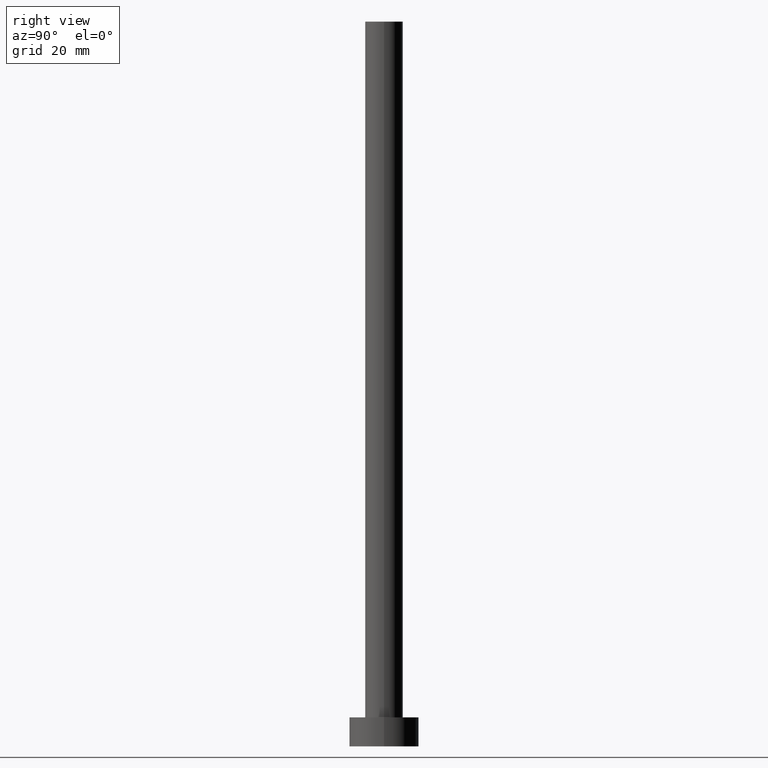
[diagram: clean part render]
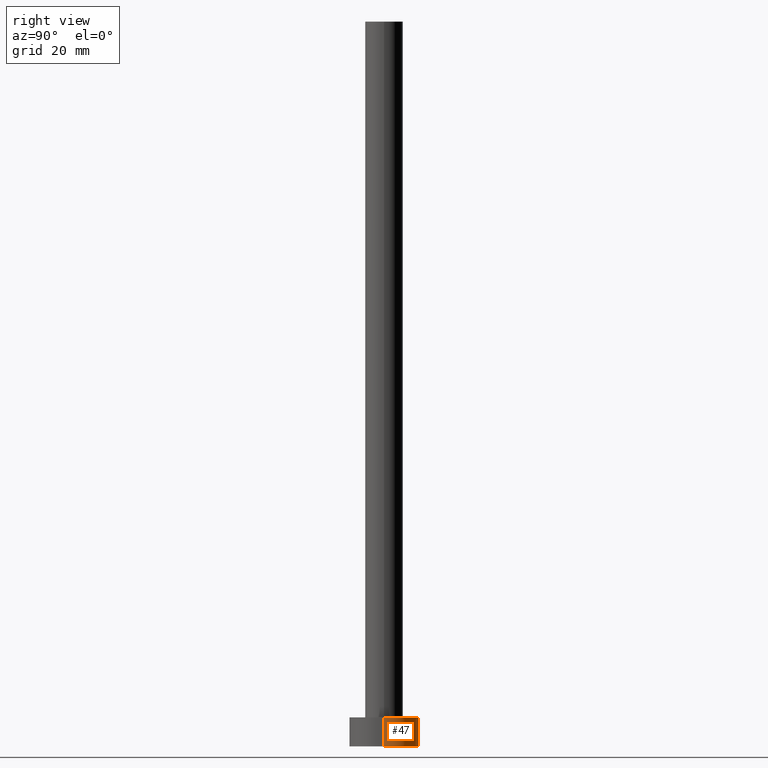
[diagram: same view with one face highlighted and labeled with its STEP entity id]
A machine part, right view. The second image highlights one B-rep face of the part: STEP entity #47.
In plain terms, the highlighted cylindrical surface (edge-blend (fillet) strip) has radius 6 mm, axis along (-0, -0, -1).
Its self-contained STEP definition (entity closure, byte-faithful):
#1 = EDGE_LOOP ( 'NONE', ( #6, #85, #63, #153 ) ) ;
#3 = FACE_OUTER_BOUND ( 'NONE', #1, .T. ) ;
#6 = ORIENTED_EDGE ( 'NONE', *, *, #240, .F. ) ;
#15 = CIRCLE ( 'NONE', #237, 6.000000000000000888 ) ;
#28 = CARTESIAN_POINT ( 'NONE',  ( 6.000000000000000888, 7.347880794884120722E-16, 5.000000000000000000 ) ) ;
#42 = DIRECTION ( 'NONE',  ( 0.000000000000000000, 0.000000000000000000, 1.000000000000000000 ) ) ;
#45 = CARTESIAN_POINT ( 'NONE',  ( 6.000000000000000888, 7.347880794884120722E-16, 5.000000000000000000 ) ) ;
#47 = ADVANCED_FACE ( 'NONE', ( #3 ), #171, .T. ) ;
#51 = DIRECTION ( 'NONE',  ( 0.000000000000000000, 0.000000000000000000, 1.000000000000000000 ) ) ;
#54 = EDGE_CURVE ( 'NONE', #117, #129, #71, .T. ) ;
#59 = EDGE_CURVE ( 'NONE', #102, #199, #241, .T. ) ;
#63 = ORIENTED_EDGE ( 'NONE', *, *, #92, .T. ) ;
#71 = LINE ( 'NONE', #107, #182 ) ;
#85 = ORIENTED_EDGE ( 'NONE', *, *, #59, .T. ) ;
#92 = EDGE_CURVE ( 'NONE', #199, #129, #15, .T. ) ;
#102 = VERTEX_POINT ( 'NONE', #28 ) ;
#107 = CARTESIAN_POINT ( 'NONE',  ( -6.000000000000000888, 0.000000000000000000, 5.000000000000000000 ) ) ;
#117 = VERTEX_POINT ( 'NONE', #151 ) ;
#129 = VERTEX_POINT ( 'NONE', #191 ) ;
#151 = CARTESIAN_POINT ( 'NONE',  ( -6.000000000000000888, 0.000000000000000000, 5.000000000000000000 ) ) ;
#153 = ORIENTED_EDGE ( 'NONE', *, *, #54, .F. ) ;
#155 = CARTESIAN_POINT ( 'NONE',  ( 0.000000000000000000, 0.000000000000000000, 5.000000000000000000 ) ) ;
#164 = VECTOR ( 'NONE', #185, 1000.000000000000000 ) ;
#169 = DIRECTION ( 'NONE',  ( 1.000000000000000000, 0.000000000000000000, 0.000000000000000000 ) ) ;
#171 = CYLINDRICAL_SURFACE ( 'NONE', #174, 6.000000000000000888 ) ;
#173 = CARTESIAN_POINT ( 'NONE',  ( 0.000000000000000000, 0.000000000000000000, 0.000000000000000000 ) ) ;
#174 = AXIS2_PLACEMENT_3D ( 'NONE', #189, #221, #209 ) ;
#175 = DIRECTION ( 'NONE',  ( 1.000000000000000000, 0.000000000000000000, 0.000000000000000000 ) ) ;
#182 = VECTOR ( 'NONE', #204, 1000.000000000000000 ) ;
#185 = DIRECTION ( 'NONE',  ( -0.000000000000000000, -0.000000000000000000, -1.000000000000000000 ) ) ;
#189 = CARTESIAN_POINT ( 'NONE',  ( 0.000000000000000000, 0.000000000000000000, 5.000000000000000000 ) ) ;
#191 = CARTESIAN_POINT ( 'NONE',  ( -6.000000000000000888, 0.000000000000000000, 0.000000000000000000 ) ) ;
#192 = CIRCLE ( 'NONE', #233, 6.000000000000000888 ) ;
#199 = VERTEX_POINT ( 'NONE', #228 ) ;
#204 = DIRECTION ( 'NONE',  ( -0.000000000000000000, -0.000000000000000000, -1.000000000000000000 ) ) ;
#209 = DIRECTION ( 'NONE',  ( -1.000000000000000000, 0.000000000000000000, 0.000000000000000000 ) ) ;
#221 = DIRECTION ( 'NONE',  ( -0.000000000000000000, -0.000000000000000000, -1.000000000000000000 ) ) ;
#228 = CARTESIAN_POINT ( 'NONE',  ( 6.000000000000000888, 7.347880794884120722E-16, 0.000000000000000000 ) ) ;
#233 = AXIS2_PLACEMENT_3D ( 'NONE', #155, #51, #175 ) ;
#237 = AXIS2_PLACEMENT_3D ( 'NONE', #173, #42, #169 ) ;
#240 = EDGE_CURVE ( 'NONE', #102, #117, #192, .T. ) ;
#241 = LINE ( 'NONE', #45, #164 ) ;